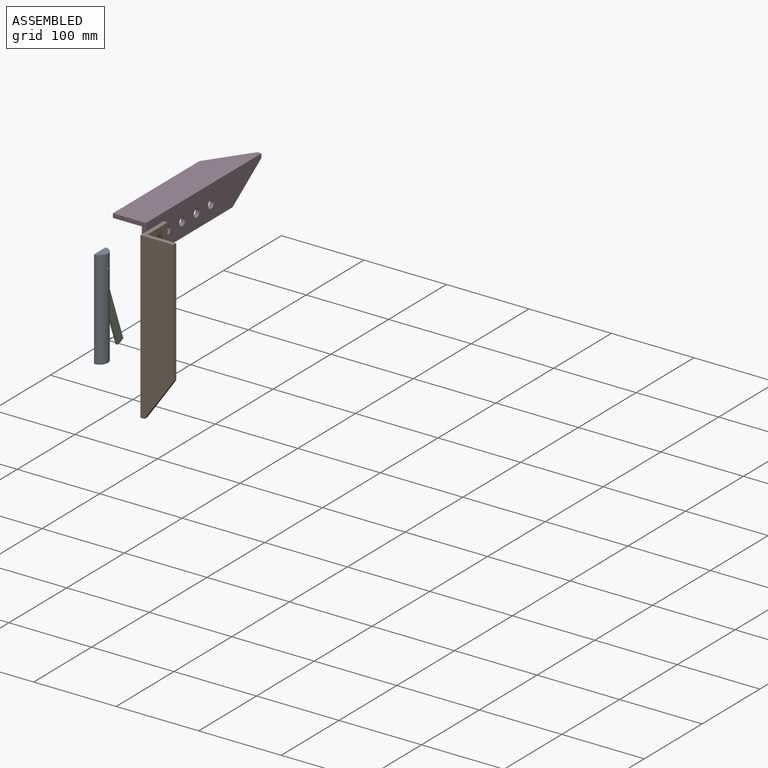
[diagram: assembled view]
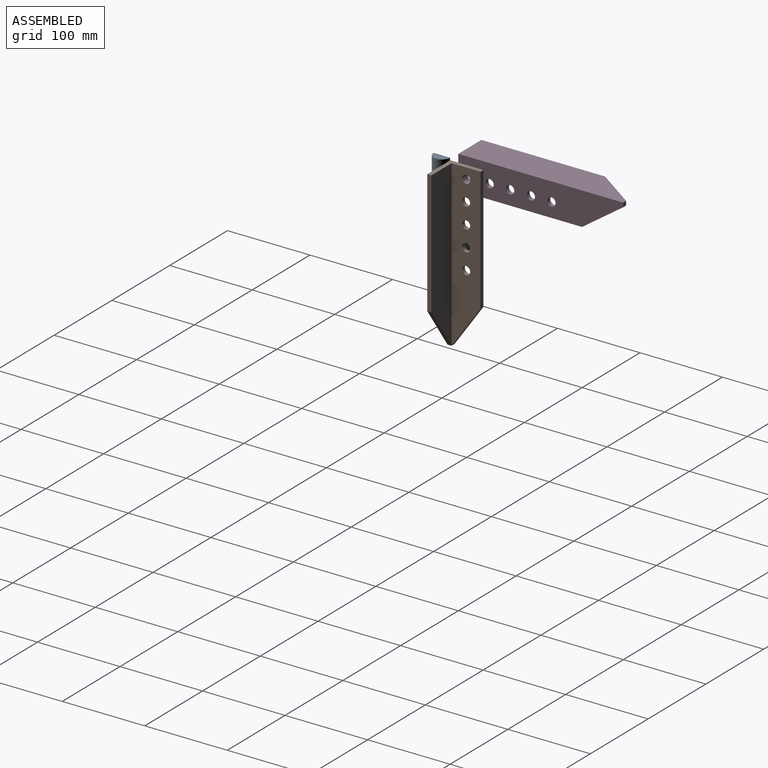
[diagram: assembled view, second angle]
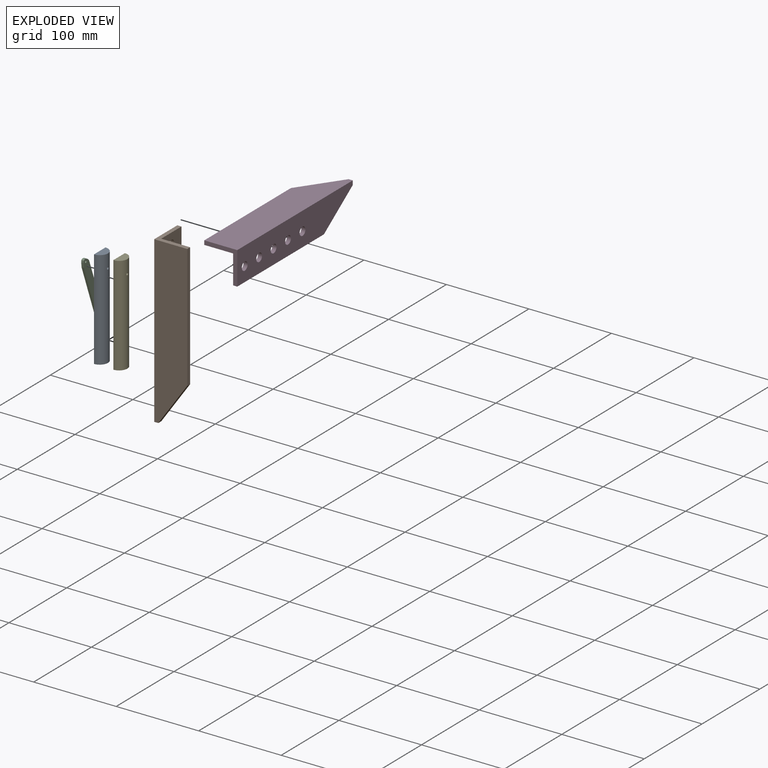
[diagram: exploded view]
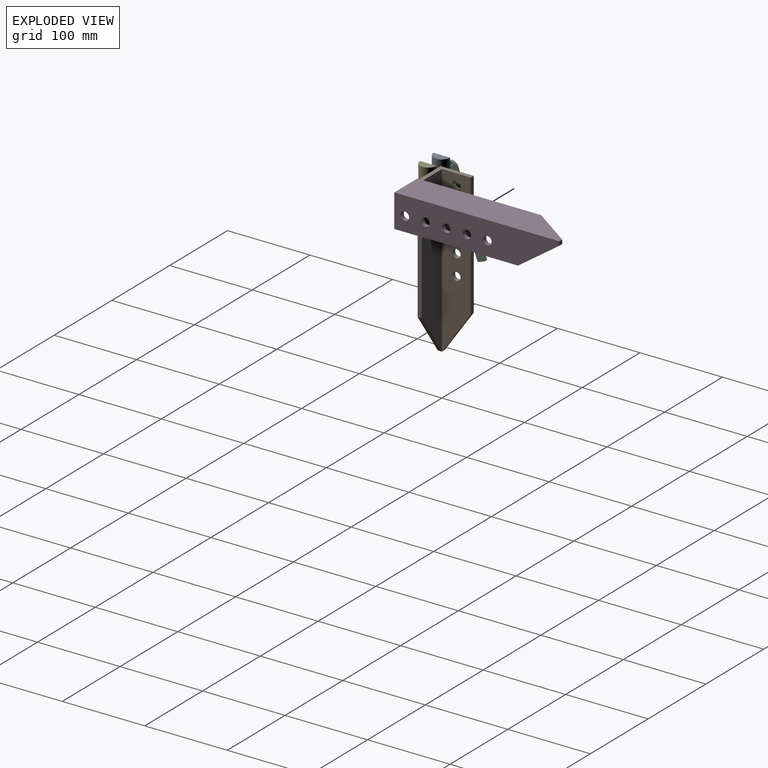
[diagram: exploded view, second angle]
ASSEMBLY  parts=4 mates=2
PART A: 19 faces, bbox 10x20x120 mm
  f0: cylinder r=1.5mm len=7mm, axis (1,0,0), area 65.4mm2, adj f3,f17
  f1: plane 11.42x3.79mm, normal (0,-0.95,-0.32), area 17.3mm2, adj f2,f3,f5,f17
  f2: cylinder r=8.65mm len=5.29mm, axis (-1,0,0), area 11.2mm2, adj f1,f3,f5,f12
  f3: plane 48.05x13.42mm, normal (-1,0,0), area 312.3mm2, adj f0,f1,f2,f9,f10,f11,f12,f14
  f4: plane 1.97x0.35mm, normal (-1,0,0), area 0.3mm2, adj f7,f8,f9
  f5: plane 16.91x9.23mm, normal (-1,0,0), area 30.4mm2, adj f1,f2,f6,f12,f13,f17
  f6: cylinder r=8.65mm len=5.92mm, axis (-1,0,0), area 10.2mm2, adj f5,f12,f13,f18
  f7: cylinder r=3mm len=1.5mm, axis (-1,0,0), area 0.9mm2, adj f4,f8,f9,f18
  f8: plane 1.5x1.41mm, normal (0,0.97,0.24), area 2.2mm2, adj f4,f7,f9,f18
  f9: plane 7.21x3mm, normal (0,1,0.07), area 18.7mm2, adj f3,f4,f7,f8,f10,f14,f18
  f10: plane 3x0.03mm, normal (0,0.93,-0.38), area 0.1mm2, adj f3,f9,f11,f18
  f11: cylinder r=3mm len=3.91mm, axis (-1,0,0), area 14.1mm2, adj f3,f10,f12,f18
  f12: plane 3x1.11mm, normal (0,-0.38,-0.93), area 2.8mm2, adj f2,f3,f5,f6,f11,f18
  f13: plane 4x3.42mm, normal (0,-0.76,-0.65), area 7.8mm2, adj f5,f6,f17,f18
  f14: plane 40.32x13.4mm, normal (0,0.95,0.32), area 126mm2, adj f3,f9,f17,f18
  f15: plane 20x10mm, normal (0,0,-1), area 157.1mm2, adj f17,f18
  f16: plane 20x10mm, normal (0,0,1), area 157.1mm2, adj f17,f18
  f17: cylinder r=10mm len=120mm, axis (0,0,-1), area 3650.9mm2, adj f0,f1,f3,f5,f13,f14,f15,f16
  f18: plane 120x20mm, normal (-1,0,0), area 2034.1mm2, adj f6,f7,f8,f9,f10,f11,f12,f13
PART B: 15 faces, bbox 40x40x200 mm
  f0: plane 150x5mm, normal (0,1,0), area 750mm2, adj f1,f2,f7,f14
  f1: plane 200x40mm, normal (-1,0,0), area 6732.3mm2, adj f0,f5,f6,f7,f9,f10,f11,f12
  f2: plane 200x35mm, normal (1,0,0), area 5732.3mm2, adj f0,f4,f7,f9,f10,f11,f12,f13
  f3: plane 150x5mm, normal (1,0,0), area 750mm2, adj f4,f6,f7,f8
  f4: plane 200x35mm, normal (0,1,0), area 6125mm2, adj f2,f3,f7,f8
  f5: plane 5x5mm, normal (0,0,-1), area 25mm2, adj f1,f6,f8,f14
  f6: plane 200x40mm, normal (0,-1,0), area 7125mm2, adj f1,f3,f5,f7,f8
  f7: plane 40x40mm, normal (0,0,1), area 375mm2, adj f0,f1,f2,f3,f4,f6
  f8: plane 50x35mm, normal (0.82,0,-0.57), area 305.2mm2, adj f3,f4,f5,f6
  f9: cylinder r=5mm len=10mm, axis (1,0,0), area 157.1mm2, adj f1,f2
  f10: cylinder r=5mm len=10mm, axis (1,0,0), area 157.1mm2, adj f1,f2
  f11: cylinder r=5mm len=10mm, axis (1,0,0), area 157.1mm2, adj f1,f2
  f12: cylinder r=5mm len=10mm, axis (1,0,0), area 157.1mm2, adj f1,f2
  f13: cylinder r=5mm len=10mm, axis (1,0,0), area 157.1mm2, adj f1,f2
  f14: plane 50x35mm, normal (0,0.82,-0.57), area 305.2mm2, adj f0,f1,f2,f5
PART C: 12 faces, bbox 3x75.2x85 mm
  f0: plane 75.44x64.49mm, normal (0,0.76,0.65), area 297.7mm2, adj f1,f8,f10,f11
  f1: cylinder r=8.65mm len=6.58mm, axis (-1,0,0), area 22.4mm2, adj f0,f2,f10,f11
  f2: plane 3x1.19mm, normal (0,0,1), area 3.6mm2, adj f1,f3,f10,f11
  f3: cylinder r=3mm len=3mm, axis (-1,0,0), area 11.7mm2, adj f2,f4,f10,f11
  f4: plane 3x2.12mm, normal (0,-0.97,-0.24), area 6.5mm2, adj f3,f5,f10,f11
  f5: plane 5.21x3mm, normal (0,-0.9,-0.44), area 17.4mm2, adj f4,f6,f10,f11
  f6: plane 75.44x64.49mm, normal (0,-0.76,-0.65), area 297.7mm2, adj f5,f7,f10,f11
  f7: plane 3.98x3.04mm, normal (0,0.61,-0.79), area 15mm2, adj f6,f8,f10,f11
  f8: plane 3.62x3.46mm, normal (0,0.69,-0.72), area 15mm2, adj f0,f7,f10,f11
  f9: cylinder r=1.5mm len=3mm, axis (-1,0,0), area 28.3mm2, adj f10,f11
  f10: plane 84.97x75.15mm, normal (1,0,0), area 1046mm2, adj f0,f1,f2,f3,f4,f5,f6,f7
  f11: plane 84.97x75.15mm, normal (-1,0,0), area 1046mm2, adj f0,f1,f2,f3,f4,f5,f6,f7
PART D: same geometry as B
PLACE A at identity fixed
PLACE B t=(28.21,30.06,133.34)mm
PLACE C rot(axis=(-1,0,0),20deg) t=(-1.52,-35.5,6.26)mm
PLACE D rot(axis=(0,-0.71,0.71),180deg) t=(28.21,39.61,142.9)mm
MATE fastened D.f13 <-> B.f13  axis (1,0,0) through (28.21,52.56,120.4)mm
MATE revolute A.f0 <-> C.f9  axis (1,0,0) through (-6.52,0,103.79)mm
